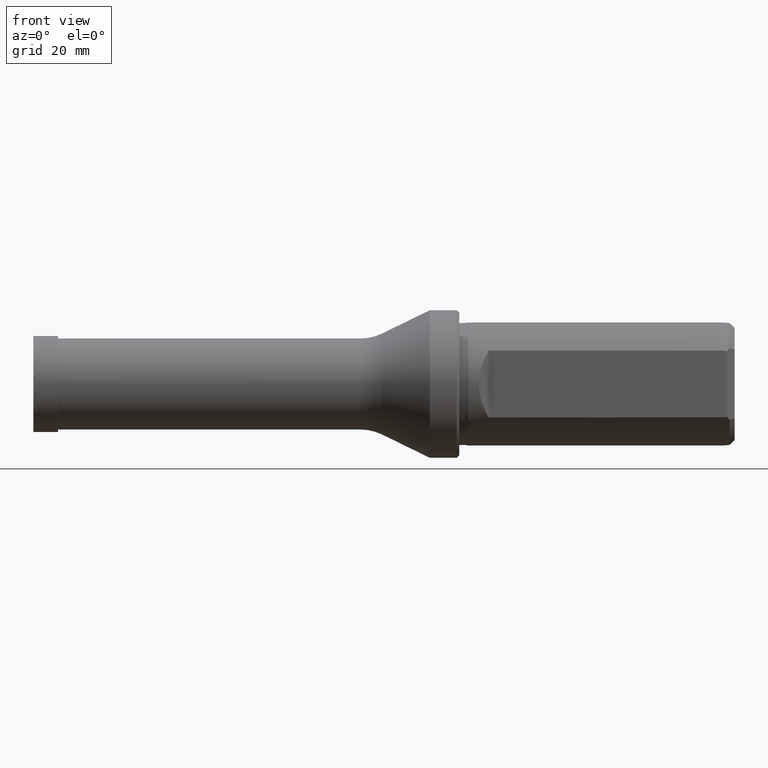
[diagram: clean part render]
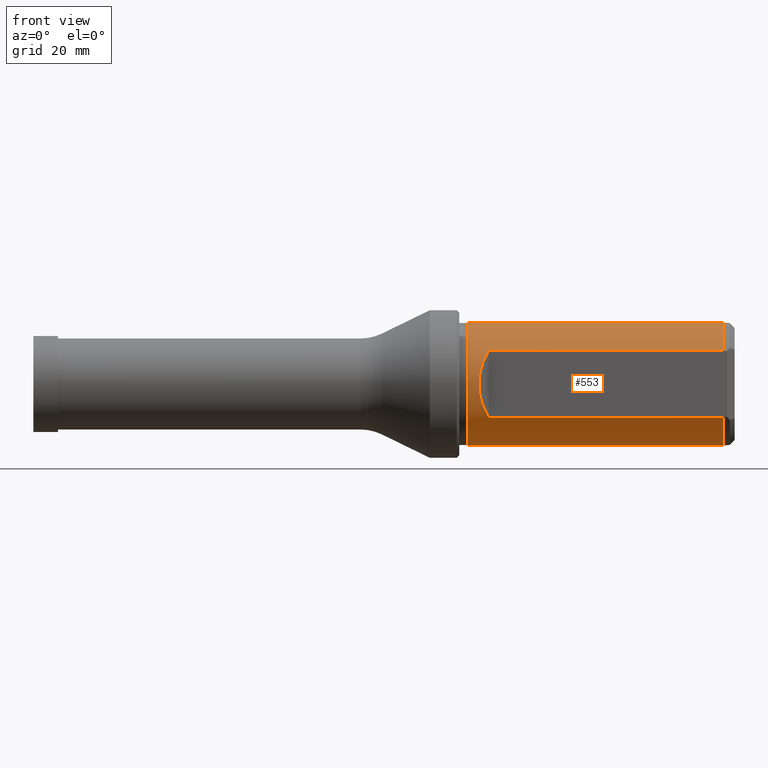
[diagram: same view with one face highlighted and labeled with its STEP entity id]
A machine part, front view. The second image highlights one B-rep face of the part: STEP entity #553.
In plain terms, the highlighted cylindrical surface (partial cylindrical patch) has radius 12.5 mm, axis along (-1, -0, -0).
Its self-contained STEP definition (entity closure, byte-faithful):
#23 = VERTEX_POINT ( 'NONE', #80 ) ;
#68 = FACE_OUTER_BOUND ( 'NONE', #1011, .T. ) ;
#80 = CARTESIAN_POINT ( 'NONE',  ( 139.8499999999819700, -10.49999999999999800, -6.782329983127953100 ) ) ;
#103 = ORIENTED_EDGE ( 'NONE', *, *, #535, .F. ) ;
#106 = ORIENTED_EDGE ( 'NONE', *, *, #332, .T. ) ;
#111 = VERTEX_POINT ( 'NONE', #990 ) ;
#113 = LINE ( 'NONE', #505, #939 ) ;
#143 = AXIS2_PLACEMENT_3D ( 'NONE', #695, #322, #1043 ) ;
#172 = VECTOR ( 'NONE', #808, 1000.000000000000000 ) ;
#177 = AXIS2_PLACEMENT_3D ( 'NONE', #940, #928, #927 ) ;
#184 = CARTESIAN_POINT ( 'NONE',  ( 92.09999999999999400, -10.49999999999999100, 6.782329983125296600 ) ) ;
#214 = AXIS2_PLACEMENT_3D ( 'NONE', #588, #609, #585 ) ;
#230 = EDGE_CURVE ( 'NONE', #1016, #111, #486, .T. ) ;
#262 = EDGE_CURVE ( 'NONE', #806, #315, #293, .T. ) ;
#293 = LINE ( 'NONE', #793, #364 ) ;
#315 = VERTEX_POINT ( 'NONE', #406 ) ;
#322 = DIRECTION ( 'NONE',  ( -1.000000000000000000, -0.0000000000000000000, -0.0000000000000000000 ) ) ;
#332 = EDGE_CURVE ( 'NONE', #111, #710, #113, .T. ) ;
#357 = VECTOR ( 'NONE', #743, 1000.000000000000000 ) ;
#364 = VECTOR ( 'NONE', #707, 1000.000000000000000 ) ;
#388 = VERTEX_POINT ( 'NONE', #184 ) ;
#394 = LINE ( 'NONE', #769, #172 ) ;
#406 = CARTESIAN_POINT ( 'NONE',  ( 87.82953698905211600, 0.0000000000000000000, -12.50000000000000000 ) ) ;
#456 = LINE ( 'NONE', #750, #357 ) ;
#469 = ORIENTED_EDGE ( 'NONE', *, *, #526, .T. ) ;
#470 = DIRECTION ( 'NONE',  ( -1.000000000000000000, -0.0000000000000000000, -0.0000000000000000000 ) ) ;
#486 = CIRCLE ( 'NONE', #143, 12.50000000000000000 ) ;
#502 = EDGE_CURVE ( 'NONE', #710, #315, #997, .T. ) ;
#505 = CARTESIAN_POINT ( 'NONE',  ( -0.5000000000000005600, 0.0000000000000000000, 12.50000000000000000 ) ) ;
#526 = EDGE_CURVE ( 'NONE', #806, #23, #616, .T. ) ;
#535 = EDGE_CURVE ( 'NONE', #754, #23, #456, .T. ) ;
#538 = EDGE_CURVE ( 'NONE', #388, #754, #570, .T. ) ;
#540 = EDGE_CURVE ( 'NONE', #1016, #388, #394, .T. ) ;
#553 = ADVANCED_FACE ( 'NONE', ( #68 ), #951, .T. ) ;
#570 =( BOUNDED_CURVE ( )  B_SPLINE_CURVE ( 3, ( #762, #766, #715, #708 ),
 .UNSPECIFIED., .F., .T. ) 
 B_SPLINE_CURVE_WITH_KNOTS ( ( 4, 4 ),
 ( 5.709672202756486600, 6.856698411602685900 ),
 .UNSPECIFIED. ) 
 CURVE ( )  GEOMETRIC_REPRESENTATION_ITEM ( )  RATIONAL_B_SPLINE_CURVE ( ( 1.000000000000000000, 0.8933333333333323100, 0.8933333333333323100, 1.000000000000000000 ) ) 
 REPRESENTATION_ITEM ( '' )  );
#585 = DIRECTION ( 'NONE',  ( 0.0000000000000000000, 0.0000000000000000000, 1.000000000000000000 ) ) ;
#588 = CARTESIAN_POINT ( 'NONE',  ( -0.5000000000000005600, 0.0000000000000000000, 0.0000000000000000000 ) ) ;
#609 = DIRECTION ( 'NONE',  ( -1.000000000000000000, -0.0000000000000000000, -0.0000000000000000000 ) ) ;
#616 = CIRCLE ( 'NONE', #1056, 12.50000000000000000 ) ;
#675 = ORIENTED_EDGE ( 'NONE', *, *, #230, .T. ) ;
#695 = CARTESIAN_POINT ( 'NONE',  ( 139.8500000000001600, 0.0000000000000000000, 0.0000000000000000000 ) ) ;
#707 = DIRECTION ( 'NONE',  ( -1.000000000000000000, -0.0000000000000000000, -0.0000000000000000000 ) ) ;
#708 = CARTESIAN_POINT ( 'NONE',  ( 92.09999999999999400, -10.49999999999999100, -6.782329983125306300 ) ) ;
#710 = VERTEX_POINT ( 'NONE', #723 ) ;
#715 = CARTESIAN_POINT ( 'NONE',  ( 89.35373134328355600, -13.24626865671642800, -2.530720142957204400 ) ) ;
#723 = CARTESIAN_POINT ( 'NONE',  ( 87.82953698905211600, 1.530808498934191700E-015, 12.50000000000000000 ) ) ;
#742 = ORIENTED_EDGE ( 'NONE', *, *, #540, .F. ) ;
#743 = DIRECTION ( 'NONE',  ( 1.000000000000000000, 0.0000000000000000000, 0.0000000000000000000 ) ) ;
#750 = CARTESIAN_POINT ( 'NONE',  ( -0.5000000000000021100, -10.49999999999997900, -6.782329983125304600 ) ) ;
#754 = VERTEX_POINT ( 'NONE', #771 ) ;
#762 = CARTESIAN_POINT ( 'NONE',  ( 92.09999999999999400, -10.49999999999999100, 6.782329983125296600 ) ) ;
#766 = CARTESIAN_POINT ( 'NONE',  ( 89.35373134328355600, -13.24626865671642900, 2.530720142957207000 ) ) ;
#769 = CARTESIAN_POINT ( 'NONE',  ( -0.5000000000000021100, -10.49999999999997900, 6.782329983125304600 ) ) ;
#771 = CARTESIAN_POINT ( 'NONE',  ( 92.09999999999999400, -10.49999999999999100, -6.782329983125306300 ) ) ;
#774 = DIRECTION ( 'NONE',  ( 0.0000000000000000000, 0.0000000000000000000, 1.000000000000000000 ) ) ;
#777 = DIRECTION ( 'NONE',  ( -1.000000000000000000, -0.0000000000000000000, -0.0000000000000000000 ) ) ;
#785 = CARTESIAN_POINT ( 'NONE',  ( 139.8500000000001600, 0.0000000000000000000, 0.0000000000000000000 ) ) ;
#793 = CARTESIAN_POINT ( 'NONE',  ( -0.5000000000000005600, 1.530808498934191500E-015, -12.50000000000000000 ) ) ;
#806 = VERTEX_POINT ( 'NONE', #859 ) ;
#808 = DIRECTION ( 'NONE',  ( -1.000000000000000000, -0.0000000000000000000, -0.0000000000000000000 ) ) ;
#825 = CARTESIAN_POINT ( 'NONE',  ( 139.8500000000001600, -10.49999999999999800, 6.782329983125270800 ) ) ;
#859 = CARTESIAN_POINT ( 'NONE',  ( 139.8500000000001600, 1.530808498934191500E-015, -12.50000000000000000 ) ) ;
#927 = DIRECTION ( 'NONE',  ( 0.0000000000000000000, 0.0000000000000000000, -1.000000000000000000 ) ) ;
#928 = DIRECTION ( 'NONE',  ( 1.000000000000000000, -0.0000000000000000000, -0.0000000000000000000 ) ) ;
#939 = VECTOR ( 'NONE', #470, 1000.000000000000000 ) ;
#940 = CARTESIAN_POINT ( 'NONE',  ( 87.82953698905211600, 0.0000000000000000000, 0.0000000000000000000 ) ) ;
#951 = CYLINDRICAL_SURFACE ( 'NONE', #214, 12.50000000000000000 ) ;
#990 = CARTESIAN_POINT ( 'NONE',  ( 139.8500000000001600, 0.0000000000000000000, 12.50000000000000000 ) ) ;
#997 = CIRCLE ( 'NONE', #177, 12.50000000000000000 ) ;
#1011 = EDGE_LOOP ( 'NONE', ( #1120, #469, #103, #1192, #742, #675, #106, #1225 ) ) ;
#1016 = VERTEX_POINT ( 'NONE', #825 ) ;
#1043 = DIRECTION ( 'NONE',  ( 0.0000000000000000000, 0.0000000000000000000, 1.000000000000000000 ) ) ;
#1056 = AXIS2_PLACEMENT_3D ( 'NONE', #785, #777, #774 ) ;
#1120 = ORIENTED_EDGE ( 'NONE', *, *, #262, .F. ) ;
#1192 = ORIENTED_EDGE ( 'NONE', *, *, #538, .F. ) ;
#1225 = ORIENTED_EDGE ( 'NONE', *, *, #502, .T. ) ;